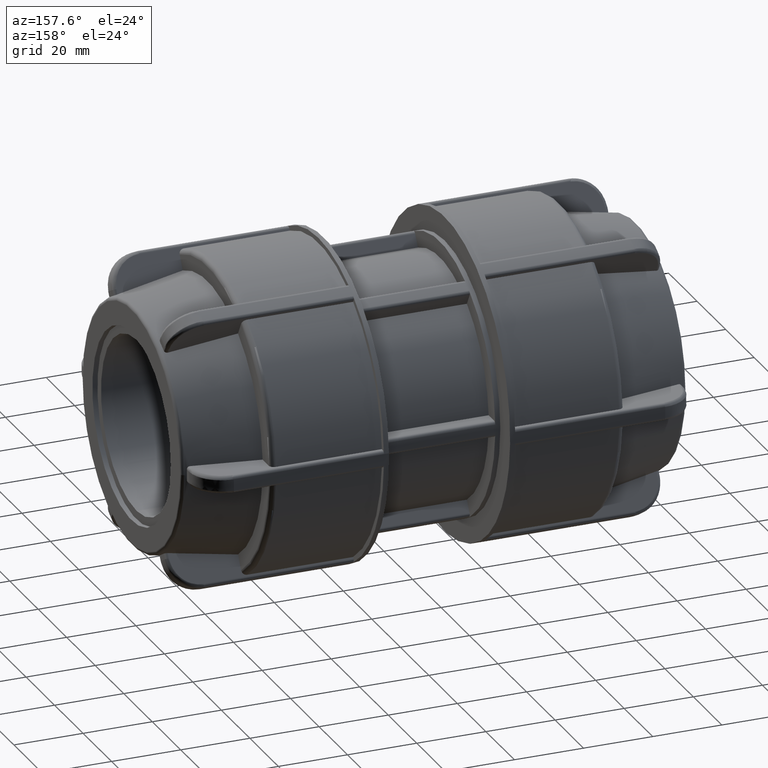
[diagram: clean part render]
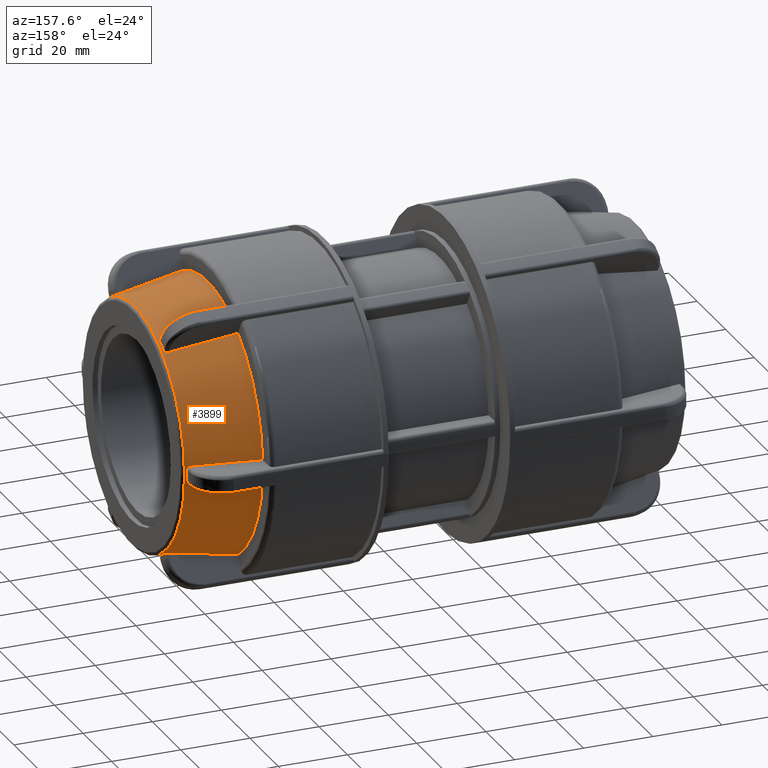
[diagram: same view with one face highlighted and labeled with its STEP entity id]
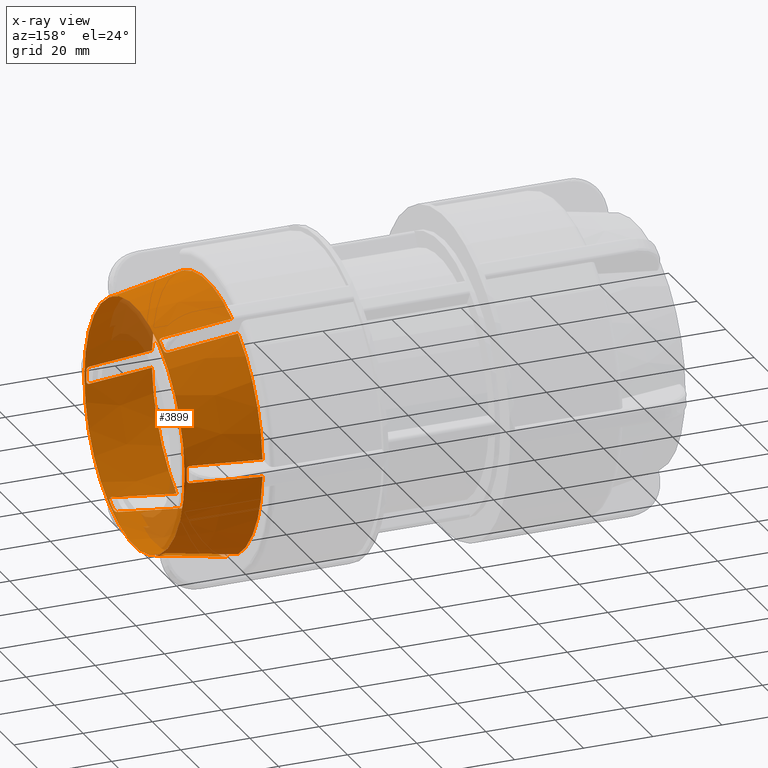
[diagram: x-ray of the same camera — body ghosted, the highlighted face saturated]
A machine part, auxiliary view. The second image highlights one B-rep face of the part: STEP entity #3899.
The next image is the same camera in x-ray: the body ghosted, the highlighted face saturated — about 8% of this face is hidden behind the body in this view.
In plain terms, the highlighted conical surface has half-angle 10 deg.
Its self-contained STEP definition (entity closure, byte-faithful):
#16=CONICAL_SURFACE('',#4328,36.9307804387577,10.);
#55=(
BOUNDED_CURVE()
B_SPLINE_CURVE(2,(#7132,#7133,#7134),.UNSPECIFIED.,.F.,.F.)
B_SPLINE_CURVE_WITH_KNOTS((3,3),(0.0978862877514315,2.07567538684826),
 .UNSPECIFIED.)
CURVE()
GEOMETRIC_REPRESENTATION_ITEM()
RATIONAL_B_SPLINE_CURVE((1.00010692556485,1.00113367647446,1.))
REPRESENTATION_ITEM('')
);
#56=(
BOUNDED_CURVE()
B_SPLINE_CURVE(2,(#7295,#7296,#7297),.UNSPECIFIED.,.F.,.F.)
B_SPLINE_CURVE_WITH_KNOTS((3,3),(0.097886291387217,2.07567538684826),
 .UNSPECIFIED.)
CURVE()
GEOMETRIC_REPRESENTATION_ITEM()
RATIONAL_B_SPLINE_CURVE((1.00010692591593,1.00113368015463,1.))
REPRESENTATION_ITEM('')
);
#57=(
BOUNDED_CURVE()
B_SPLINE_CURVE(2,(#7458,#7459,#7460),.UNSPECIFIED.,.F.,.F.)
B_SPLINE_CURVE_WITH_KNOTS((3,3),(0.0978862910511873,2.07567538684826),
 .UNSPECIFIED.)
CURVE()
GEOMETRIC_REPRESENTATION_ITEM()
RATIONAL_B_SPLINE_CURVE((1.00010692588588,1.00113367983993,1.))
REPRESENTATION_ITEM('')
);
#58=(
BOUNDED_CURVE()
B_SPLINE_CURVE(2,(#7621,#7622,#7623),.UNSPECIFIED.,.F.,.F.)
B_SPLINE_CURVE_WITH_KNOTS((3,3),(0.0978862911756987,2.07567538684826),
 .UNSPECIFIED.)
CURVE()
GEOMETRIC_REPRESENTATION_ITEM()
RATIONAL_B_SPLINE_CURVE((1.00010692590532,1.00113368004455,1.))
REPRESENTATION_ITEM('')
);
#59=(
BOUNDED_CURVE()
B_SPLINE_CURVE(2,(#7784,#7785,#7786),.UNSPECIFIED.,.F.,.F.)
B_SPLINE_CURVE_WITH_KNOTS((3,3),(0.097886288009189,2.07567538684826),
 .UNSPECIFIED.)
CURVE()
GEOMETRIC_REPRESENTATION_ITEM()
RATIONAL_B_SPLINE_CURVE((1.00010692558834,1.00113367672052,1.))
REPRESENTATION_ITEM('')
);
#60=(
BOUNDED_CURVE()
B_SPLINE_CURVE(2,(#7789,#7790,#7791),.UNSPECIFIED.,.F.,.F.)
B_SPLINE_CURVE_WITH_KNOTS((3,3),(0.,1.97778909908837),.UNSPECIFIED.)
CURVE()
GEOMETRIC_REPRESENTATION_ITEM()
RATIONAL_B_SPLINE_CURVE((1.,1.00113367637421,1.00010692555541))
REPRESENTATION_ITEM('')
);
#61=(
BOUNDED_CURVE()
B_SPLINE_CURVE(2,(#7810,#7811,#7812),.UNSPECIFIED.,.F.,.F.)
B_SPLINE_CURVE_WITH_KNOTS((3,3),(0.,1.97778909546345),.UNSPECIFIED.)
CURVE()
GEOMETRIC_REPRESENTATION_ITEM()
RATIONAL_B_SPLINE_CURVE((1.,1.00113368017763,1.0001069259181))
REPRESENTATION_ITEM('')
);
#62=(
BOUNDED_CURVE()
B_SPLINE_CURVE(2,(#7831,#7832,#7833),.UNSPECIFIED.,.F.,.F.)
B_SPLINE_CURVE_WITH_KNOTS((3,3),(0.,1.97778909580191),.UNSPECIFIED.)
CURVE()
GEOMETRIC_REPRESENTATION_ITEM()
RATIONAL_B_SPLINE_CURVE((1.,1.00113367989732,1.00010692589129))
REPRESENTATION_ITEM('')
);
#63=(
BOUNDED_CURVE()
B_SPLINE_CURVE(2,(#7852,#7853,#7854),.UNSPECIFIED.,.F.,.F.)
B_SPLINE_CURVE_WITH_KNOTS((3,3),(0.,1.97778909575819),.UNSPECIFIED.)
CURVE()
GEOMETRIC_REPRESENTATION_ITEM()
RATIONAL_B_SPLINE_CURVE((1.,1.00113367988918,1.00010692589057))
REPRESENTATION_ITEM('')
);
#64=(
BOUNDED_CURVE()
B_SPLINE_CURVE(2,(#7873,#7874,#7875),.UNSPECIFIED.,.F.,.F.)
B_SPLINE_CURVE_WITH_KNOTS((3,3),(0.,1.9777890990896),.UNSPECIFIED.)
CURVE()
GEOMETRIC_REPRESENTATION_ITEM()
RATIONAL_B_SPLINE_CURVE((1.,1.00113367640169,1.000106925558))
REPRESENTATION_ITEM('')
);
#65=(
BOUNDED_CURVE()
B_SPLINE_CURVE(2,(#7970,#7971,#7972),.UNSPECIFIED.,.F.,.F.)
B_SPLINE_CURVE_WITH_KNOTS((3,3),(0.,1.9777890990044),.UNSPECIFIED.)
CURVE()
GEOMETRIC_REPRESENTATION_ITEM()
RATIONAL_B_SPLINE_CURVE((1.,1.00113367653114,1.0001069255703))
REPRESENTATION_ITEM('')
);
#66=(
BOUNDED_CURVE()
B_SPLINE_CURVE(2,(#8004,#8005,#8006),.UNSPECIFIED.,.F.,.F.)
B_SPLINE_CURVE_WITH_KNOTS((3,3),(0.0978862878441736,2.07567538684825),
 .UNSPECIFIED.)
CURVE()
GEOMETRIC_REPRESENTATION_ITEM()
RATIONAL_B_SPLINE_CURVE((1.00010692557014,1.0011336765294,1.))
REPRESENTATION_ITEM('')
);
#117=B_SPLINE_CURVE_WITH_KNOTS('',3,(#6978,#6979,#6980,#6981,#6982,#6983,
#6984,#6985,#6986,#6987,#6988,#6989,#6990),.UNSPECIFIED.,.F.,.F.,(4,3,2,
2,2,4),(-0.00116009146380088,0.,0.0349671497301635,0.069934299460327,0.104425352367848,
0.138193037752767),.UNSPECIFIED.);
#120=B_SPLINE_CURVE_WITH_KNOTS('',3,(#7100,#7101,#7102,#7103,#7104,#7105,
#7106,#7107,#7108,#7109,#7110,#7111,#7112),.UNSPECIFIED.,.F.,.F.,(4,2,2,
2,3,4),(-0.138193037752768,-0.104425352367847,-0.0699342994603256,-0.0349671497301628,
0.,0.00116009146425094),.UNSPECIFIED.);
#124=B_SPLINE_CURVE_WITH_KNOTS('',3,(#7189,#7190,#7191,#7192,#7193,#7194,
#7195,#7196,#7197,#7198,#7199,#7200,#7201),.UNSPECIFIED.,.F.,.F.,(4,3,2,
2,2,4),(-0.00116009146382486,0.,0.0349671497301629,0.0699342994603257,0.104425352367848,
0.138193037752767),.UNSPECIFIED.);
#127=B_SPLINE_CURVE_WITH_KNOTS('',3,(#7263,#7264,#7265,#7266,#7267,#7268,
#7269,#7270,#7271,#7272,#7273,#7274,#7275),.UNSPECIFIED.,.F.,.F.,(4,2,2,
2,3,4),(-0.138193037752768,-0.104425352367848,-0.0699342994603265,-0.0349671497301632,
0.,0.00116009146427436),.UNSPECIFIED.);
#131=B_SPLINE_CURVE_WITH_KNOTS('',3,(#7352,#7353,#7354,#7355,#7356,#7357,
#7358,#7359,#7360,#7361,#7362,#7363,#7364),.UNSPECIFIED.,.F.,.F.,(4,3,2,
2,2,4),(-0.00116009146382164,0.,0.0349671497301633,0.0699342994603266,0.104425352367848,
0.138193037752768),.UNSPECIFIED.);
#134=B_SPLINE_CURVE_WITH_KNOTS('',3,(#7426,#7427,#7428,#7429,#7430,#7431,
#7432,#7433,#7434,#7435,#7436,#7437,#7438),.UNSPECIFIED.,.F.,.F.,(4,2,2,
2,3,4),(-0.138193037752768,-0.104425352367848,-0.0699342994603265,-0.0349671497301632,
0.,0.00116009146427194),.UNSPECIFIED.);
#138=B_SPLINE_CURVE_WITH_KNOTS('',3,(#7515,#7516,#7517,#7518,#7519,#7520,
#7521,#7522,#7523,#7524,#7525,#7526,#7527),.UNSPECIFIED.,.F.,.F.,(4,3,2,
2,2,4),(-0.00116009146382107,0.,0.0349671497301632,0.0699342994603265,0.104425352367848,
0.138193037752767),.UNSPECIFIED.);
#141=B_SPLINE_CURVE_WITH_KNOTS('',3,(#7589,#7590,#7591,#7592,#7593,#7594,
#7595,#7596,#7597,#7598,#7599,#7600,#7601),.UNSPECIFIED.,.F.,.F.,(4,2,2,
2,3,4),(-0.138193037752767,-0.104425352367848,-0.0699342994603269,-0.0349671497301635,
0.,0.00116009146427305),.UNSPECIFIED.);
#145=B_SPLINE_CURVE_WITH_KNOTS('',3,(#7678,#7679,#7680,#7681,#7682,#7683,
#7684,#7685,#7686,#7687,#7688,#7689,#7690),.UNSPECIFIED.,.F.,.F.,(4,3,2,
2,2,4),(-0.00116009146380058,0.,0.0349671497301633,0.0699342994603266,0.104425352367848,
0.138193037752768),.UNSPECIFIED.);
#148=B_SPLINE_CURVE_WITH_KNOTS('',3,(#7752,#7753,#7754,#7755,#7756,#7757,
#7758,#7759,#7760,#7761,#7762,#7763,#7764),.UNSPECIFIED.,.F.,.F.,(4,2,2,
2,3,4),(-0.138193037752767,-0.104425352367848,-0.0699342994603259,-0.034967149730163,
0.,0.00116009146425361),.UNSPECIFIED.);
#157=B_SPLINE_CURVE_WITH_KNOTS('',3,(#7974,#7975,#7976,#7977,#7978,#7979,
#7980,#7981,#7982,#7983,#7984,#7985,#7986),.UNSPECIFIED.,.F.,.F.,(4,3,2,
2,2,4),(-0.00116009146379942,0.,0.0349671497301636,0.0699342994603273,0.104425352367849,
0.138193037752769),.UNSPECIFIED.);
#158=B_SPLINE_CURVE_WITH_KNOTS('',3,(#7990,#7991,#7992,#7993,#7994,#7995,
#7996,#7997,#7998,#7999,#8000,#8001,#8002),.UNSPECIFIED.,.F.,.F.,(4,2,2,
2,3,4),(-0.138193037752768,-0.104425352367848,-0.0699342994603265,-0.0349671497301632,
0.,0.00116009146425099),.UNSPECIFIED.);
#209=FACE_BOUND('',#766,.T.);
#513=FACE_OUTER_BOUND('',#765,.T.);
#765=EDGE_LOOP('',(#3480,#3481,#3482,#3483,#3484,#3485,#3486,#3487,#3488,
#3489,#3490,#3491,#3492,#3493,#3494,#3495,#3496,#3497,#3498,#3499,#3500,
#3501,#3502,#3503,#3504,#3505,#3506,#3507,#3508,#3509,#3510,#3511,#3512,
#3513,#3514,#3515));
#766=EDGE_LOOP('',(#3516));
#1396=CIRCLE('',#4200,35.2574373918344);
#1417=CIRCLE('',#4229,35.2574373918344);
#1425=CIRCLE('',#4244,35.2574373918344);
#1433=CIRCLE('',#4259,35.2574373918344);
#1441=CIRCLE('',#4274,35.2574373918344);
#1466=CIRCLE('',#4329,38.8615608775154);
#1467=CIRCLE('',#4330,35.2574373918344);
#1468=CIRCLE('',#4331,38.8615608775154);
#1469=CIRCLE('',#4332,38.8615608775154);
#1470=CIRCLE('',#4333,38.8615608775154);
#1471=CIRCLE('',#4334,38.8615608775154);
#1472=CIRCLE('',#4335,38.8615608775154);
#1473=CIRCLE('',#4336,35.1457081218349);
#1716=VERTEX_POINT('',#6976);
#1717=VERTEX_POINT('',#6977);
#1719=VERTEX_POINT('',#6996);
#1746=VERTEX_POINT('',#7099);
#1750=VERTEX_POINT('',#7130);
#1755=VERTEX_POINT('',#7187);
#1756=VERTEX_POINT('',#7188);
#1758=VERTEX_POINT('',#7207);
#1762=VERTEX_POINT('',#7262);
#1766=VERTEX_POINT('',#7293);
#1771=VERTEX_POINT('',#7350);
#1772=VERTEX_POINT('',#7351);
#1774=VERTEX_POINT('',#7370);
#1778=VERTEX_POINT('',#7425);
#1782=VERTEX_POINT('',#7456);
#1787=VERTEX_POINT('',#7513);
#1788=VERTEX_POINT('',#7514);
#1790=VERTEX_POINT('',#7533);
#1794=VERTEX_POINT('',#7588);
#1798=VERTEX_POINT('',#7619);
#1803=VERTEX_POINT('',#7676);
#1804=VERTEX_POINT('',#7677);
#1806=VERTEX_POINT('',#7696);
#1810=VERTEX_POINT('',#7751);
#1814=VERTEX_POINT('',#7782);
#1815=VERTEX_POINT('',#7788);
#1819=VERTEX_POINT('',#7809);
#1823=VERTEX_POINT('',#7830);
#1827=VERTEX_POINT('',#7851);
#1831=VERTEX_POINT('',#7872);
#1844=VERTEX_POINT('',#7967);
#1845=VERTEX_POINT('',#7969);
#1846=VERTEX_POINT('',#7973);
#1847=VERTEX_POINT('',#7987);
#1848=VERTEX_POINT('',#7989);
#1849=VERTEX_POINT('',#8003);
#1850=VERTEX_POINT('',#8012);
#2215=EDGE_CURVE('',#1716,#1717,#117,.F.);
#2220=EDGE_CURVE('',#1716,#1719,#1396,.T.);
#2251=EDGE_CURVE('',#1746,#1719,#120,.F.);
#2257=EDGE_CURVE('',#1746,#1750,#55,.T.);
#2264=EDGE_CURVE('',#1755,#1756,#124,.F.);
#2269=EDGE_CURVE('',#1755,#1758,#1417,.T.);
#2276=EDGE_CURVE('',#1762,#1758,#127,.F.);
#2282=EDGE_CURVE('',#1762,#1766,#56,.T.);
#2289=EDGE_CURVE('',#1771,#1772,#131,.F.);
#2294=EDGE_CURVE('',#1771,#1774,#1425,.T.);
#2301=EDGE_CURVE('',#1778,#1774,#134,.F.);
#2307=EDGE_CURVE('',#1778,#1782,#57,.T.);
#2314=EDGE_CURVE('',#1787,#1788,#138,.F.);
#2319=EDGE_CURVE('',#1787,#1790,#1433,.T.);
#2326=EDGE_CURVE('',#1794,#1790,#141,.F.);
#2332=EDGE_CURVE('',#1794,#1798,#58,.T.);
#2339=EDGE_CURVE('',#1803,#1804,#145,.F.);
#2344=EDGE_CURVE('',#1803,#1806,#1441,.T.);
#2351=EDGE_CURVE('',#1810,#1806,#148,.F.);
#2357=EDGE_CURVE('',#1810,#1814,#59,.T.);
#2358=EDGE_CURVE('',#1815,#1717,#60,.T.);
#2363=EDGE_CURVE('',#1819,#1756,#61,.T.);
#2368=EDGE_CURVE('',#1823,#1772,#62,.T.);
#2373=EDGE_CURVE('',#1827,#1788,#63,.T.);
#2378=EDGE_CURVE('',#1831,#1804,#64,.T.);
#2410=EDGE_CURVE('',#1750,#1844,#1466,.T.);
#2411=EDGE_CURVE('',#1844,#1845,#65,.T.);
#2412=EDGE_CURVE('',#1846,#1845,#157,.F.);
#2413=EDGE_CURVE('',#1846,#1847,#1467,.T.);
#2414=EDGE_CURVE('',#1848,#1847,#158,.F.);
#2415=EDGE_CURVE('',#1848,#1849,#66,.T.);
#2416=EDGE_CURVE('',#1849,#1831,#1468,.T.);
#2417=EDGE_CURVE('',#1814,#1827,#1469,.T.);
#2418=EDGE_CURVE('',#1798,#1823,#1470,.T.);
#2419=EDGE_CURVE('',#1782,#1819,#1471,.T.);
#2420=EDGE_CURVE('',#1766,#1815,#1472,.T.);
#2421=EDGE_CURVE('',#1850,#1850,#1473,.T.);
#3480=ORIENTED_EDGE('',*,*,#2358,.T.);
#3481=ORIENTED_EDGE('',*,*,#2215,.F.);
#3482=ORIENTED_EDGE('',*,*,#2220,.T.);
#3483=ORIENTED_EDGE('',*,*,#2251,.F.);
#3484=ORIENTED_EDGE('',*,*,#2257,.T.);
#3485=ORIENTED_EDGE('',*,*,#2410,.T.);
#3486=ORIENTED_EDGE('',*,*,#2411,.T.);
#3487=ORIENTED_EDGE('',*,*,#2412,.F.);
#3488=ORIENTED_EDGE('',*,*,#2413,.T.);
#3489=ORIENTED_EDGE('',*,*,#2414,.F.);
#3490=ORIENTED_EDGE('',*,*,#2415,.T.);
#3491=ORIENTED_EDGE('',*,*,#2416,.T.);
#3492=ORIENTED_EDGE('',*,*,#2378,.T.);
#3493=ORIENTED_EDGE('',*,*,#2339,.F.);
#3494=ORIENTED_EDGE('',*,*,#2344,.T.);
#3495=ORIENTED_EDGE('',*,*,#2351,.F.);
#3496=ORIENTED_EDGE('',*,*,#2357,.T.);
#3497=ORIENTED_EDGE('',*,*,#2417,.T.);
#3498=ORIENTED_EDGE('',*,*,#2373,.T.);
#3499=ORIENTED_EDGE('',*,*,#2314,.F.);
#3500=ORIENTED_EDGE('',*,*,#2319,.T.);
#3501=ORIENTED_EDGE('',*,*,#2326,.F.);
#3502=ORIENTED_EDGE('',*,*,#2332,.T.);
#3503=ORIENTED_EDGE('',*,*,#2418,.T.);
#3504=ORIENTED_EDGE('',*,*,#2368,.T.);
#3505=ORIENTED_EDGE('',*,*,#2289,.F.);
#3506=ORIENTED_EDGE('',*,*,#2294,.T.);
#3507=ORIENTED_EDGE('',*,*,#2301,.F.);
#3508=ORIENTED_EDGE('',*,*,#2307,.T.);
#3509=ORIENTED_EDGE('',*,*,#2419,.T.);
#3510=ORIENTED_EDGE('',*,*,#2363,.T.);
#3511=ORIENTED_EDGE('',*,*,#2264,.F.);
#3512=ORIENTED_EDGE('',*,*,#2269,.T.);
#3513=ORIENTED_EDGE('',*,*,#2276,.F.);
#3514=ORIENTED_EDGE('',*,*,#2282,.T.);
#3515=ORIENTED_EDGE('',*,*,#2420,.T.);
#3516=ORIENTED_EDGE('',*,*,#2421,.F.);
#3899=ADVANCED_FACE('',(#513,#209),#16,.T.);
#4200=AXIS2_PLACEMENT_3D('',#6998,#5068,#5069);
#4229=AXIS2_PLACEMENT_3D('',#7209,#5146,#5147);
#4244=AXIS2_PLACEMENT_3D('',#7372,#5185,#5186);
#4259=AXIS2_PLACEMENT_3D('',#7535,#5224,#5225);
#4274=AXIS2_PLACEMENT_3D('',#7698,#5263,#5264);
#4328=AXIS2_PLACEMENT_3D('',#7966,#5395,#5396);
#4329=AXIS2_PLACEMENT_3D('',#7968,#5397,#5398);
#4330=AXIS2_PLACEMENT_3D('',#7988,#5399,#5400);
#4331=AXIS2_PLACEMENT_3D('',#8007,#5401,#5402);
#4332=AXIS2_PLACEMENT_3D('',#8008,#5403,#5404);
#4333=AXIS2_PLACEMENT_3D('',#8009,#5405,#5406);
#4334=AXIS2_PLACEMENT_3D('',#8010,#5407,#5408);
#4335=AXIS2_PLACEMENT_3D('',#8011,#5409,#5410);
#4336=AXIS2_PLACEMENT_3D('',#8013,#5411,#5412);
#5068=DIRECTION('center_axis',(1.,2.92984834820238E-16,-2.28229996066268E-17));
#5069=DIRECTION('ref_axis',(-2.79807969853637E-16,1.,0.));
#5146=DIRECTION('center_axis',(1.,2.66631104887036E-16,-2.28229996066268E-17));
#5147=DIRECTION('ref_axis',(-2.79807969853637E-16,1.,0.));
#5185=DIRECTION('center_axis',(1.,2.53454239920435E-16,-2.1570415377137E-32));
#5186=DIRECTION('ref_axis',(-2.79807969853637E-16,1.,0.));
#5224=DIRECTION('center_axis',(1.,2.66631104887036E-16,2.28229996066268E-17));
#5225=DIRECTION('ref_axis',(-2.79807969853637E-16,1.,0.));
#5263=DIRECTION('center_axis',(1.,2.92984834820238E-16,2.28229996066269E-17));
#5264=DIRECTION('ref_axis',(-2.79807969853637E-16,1.,0.));
#5395=DIRECTION('center_axis',(-1.,-3.06161699786838E-16,0.));
#5396=DIRECTION('ref_axis',(-2.79807969853637E-16,1.,0.));
#5397=DIRECTION('center_axis',(1.,3.06161699786838E-16,0.));
#5398=DIRECTION('ref_axis',(0.,0.,-1.));
#5399=DIRECTION('center_axis',(1.,3.06161699786838E-16,0.));
#5400=DIRECTION('ref_axis',(-2.79807969853637E-16,1.,0.));
#5401=DIRECTION('center_axis',(1.,3.06161699786838E-16,0.));
#5402=DIRECTION('ref_axis',(0.,0.,-1.));
#5403=DIRECTION('center_axis',(1.,3.06161699786838E-16,0.));
#5404=DIRECTION('ref_axis',(0.,0.,-1.));
#5405=DIRECTION('center_axis',(1.,3.06161699786838E-16,0.));
#5406=DIRECTION('ref_axis',(0.,0.,-1.));
#5407=DIRECTION('center_axis',(1.,3.06161699786838E-16,0.));
#5408=DIRECTION('ref_axis',(0.,0.,-1.));
#5409=DIRECTION('center_axis',(1.,3.06161699786838E-16,0.));
#5410=DIRECTION('ref_axis',(0.,0.,-1.));
#5411=DIRECTION('center_axis',(1.,2.52713195199026E-16,-2.54474691993343E-32));
#5412=DIRECTION('ref_axis',(2.52713195199026E-16,-1.,3.06161699786839E-17));
#6976=CARTESIAN_POINT('',(71.54,16.242688432224,-31.2931616161233));
#6977=CARTESIAN_POINT('',(70.62,15.5005965971027,-31.8478208538112));
#6978=CARTESIAN_POINT('Ctrl Pts',(70.6200000000003,15.5005965971035,-31.8478208538126));
#6979=CARTESIAN_POINT('Ctrl Pts',(70.6238244710568,15.5002585753471,-31.8472353829563));
#6980=CARTESIAN_POINT('Ctrl Pts',(70.6276411304764,15.4999427418107,-31.8466406447131));
#6981=CARTESIAN_POINT('Ctrl Pts',(70.6314493540356,15.499648879794,-31.8460368671249));
#6982=CARTESIAN_POINT('Ctrl Pts',(70.7462357545523,15.4907913737614,-31.82783797334));
#6983=CARTESIAN_POINT('Ctrl Pts',(70.8688335911244,15.5019044530926,-31.7984138873874));
#6984=CARTESIAN_POINT('Ctrl Pts',(71.0944200419447,15.5687995860925,-31.7214114704913));
#6985=CARTESIAN_POINT('Ctrl Pts',(71.1973968149064,15.6245827303516,-31.6737994008835));
#6986=CARTESIAN_POINT('Ctrl Pts',(71.3585799839163,15.7586429339945,-31.5755509506214));
#6987=CARTESIAN_POINT('Ctrl Pts',(71.4278523184448,15.8453531800499,-31.5185536624937));
#6988=CARTESIAN_POINT('Ctrl Pts',(71.5180449775594,16.0375118115446,-31.4033489572621));
#6989=CARTESIAN_POINT('Ctrl Pts',(71.54,16.1425106026287,-31.3451588318056));
#6990=CARTESIAN_POINT('Ctrl Pts',(71.54,16.242688432224,-31.2931616161233));
#6996=CARTESIAN_POINT('',(71.54,18.9793287081829,-29.7131616161234));
#6998=CARTESIAN_POINT('Origin',(71.54,2.19028080027504E-14,0.));
#7099=CARTESIAN_POINT('',(70.62,19.8307236160249,-29.3478208538112));
#7100=CARTESIAN_POINT('Ctrl Pts',(71.54,18.9793287081829,-29.7131616161233));
#7101=CARTESIAN_POINT('Ctrl Pts',(71.54,19.0744485326875,-29.6524036786389));
#7102=CARTESIAN_POINT('Ctrl Pts',(71.5180449775594,19.1773420551242,-29.5905671209216));
#7103=CARTESIAN_POINT('Ctrl Pts',(71.4278523184448,19.3731915722377,-29.4817552171066));
#7104=CARTESIAN_POINT('Ctrl Pts',(71.3585799839163,19.4659077947308,-29.4351605853181));
#7105=CARTESIAN_POINT('Ctrl Pts',(71.1973968149064,19.6180235503616,-29.3681852684579));
#7106=CARTESIAN_POINT('Ctrl Pts',(71.0944200419447,19.6871483842982,-29.3436816832304));
#7107=CARTESIAN_POINT('Ctrl Pts',(70.8688335911244,19.787281999983,-29.324250007111));
#7108=CARTESIAN_POINT('Ctrl Pts',(70.7462357545523,19.8183205455668,-29.3293378410722));
#7109=CARTESIAN_POINT('Ctrl Pts',(70.6314493540356,19.8296524968889,-29.3461081132031));
#7110=CARTESIAN_POINT('Ctrl Pts',(70.6276411304749,19.8300284526103,-29.3466644939691));
#7111=CARTESIAN_POINT('Ctrl Pts',(70.6238244710553,19.8303855942694,-29.3472353829566));
#7112=CARTESIAN_POINT('Ctrl Pts',(70.6200000000003,19.8307236160257,-29.3478208538126));
#7130=CARTESIAN_POINT('',(51.1,21.5555954376782,-32.3353864854586));
#7132=CARTESIAN_POINT('Ctrl Pts',(70.6200000000002,19.8307236160249,-29.3478208538112));
#7133=CARTESIAN_POINT('Ctrl Pts',(61.3143027907585,20.6531976442815,-30.7723876586574));
#7134=CARTESIAN_POINT('Ctrl Pts',(51.1,21.5555954376782,-32.3353864854586));
#7187=CARTESIAN_POINT('',(71.54,-18.9793287081829,-29.7131616161233));
#7188=CARTESIAN_POINT('',(70.62,-19.8307236160256,-29.3478208538123));
#7189=CARTESIAN_POINT('Ctrl Pts',(70.6200000000001,-19.8307236160258,-29.3478208538126));
#7190=CARTESIAN_POINT('Ctrl Pts',(70.6238244710566,-19.8303855942693,-29.3472353829563));
#7191=CARTESIAN_POINT('Ctrl Pts',(70.6276411304764,-19.8300284526102,-29.3466644939688));
#7192=CARTESIAN_POINT('Ctrl Pts',(70.6314493540356,-19.8296524968889,-29.346108113203));
#7193=CARTESIAN_POINT('Ctrl Pts',(70.7462357545523,-19.8183205455668,-29.3293378410722));
#7194=CARTESIAN_POINT('Ctrl Pts',(70.8688335911244,-19.787281999983,-29.324250007111));
#7195=CARTESIAN_POINT('Ctrl Pts',(71.0944200419447,-19.6871483842982,-29.3436816832304));
#7196=CARTESIAN_POINT('Ctrl Pts',(71.1973968149064,-19.6180235503616,-29.3681852684578));
#7197=CARTESIAN_POINT('Ctrl Pts',(71.3585799839163,-19.4659077947308,-29.4351605853181));
#7198=CARTESIAN_POINT('Ctrl Pts',(71.4278523184448,-19.3731915722376,-29.4817552171066));
#7199=CARTESIAN_POINT('Ctrl Pts',(71.5180449775594,-19.1773420551242,-29.5905671209216));
#7200=CARTESIAN_POINT('Ctrl Pts',(71.54,-19.0744485326875,-29.6524036786389));
#7201=CARTESIAN_POINT('Ctrl Pts',(71.54,-18.9793287081829,-29.7131616161233));
#7207=CARTESIAN_POINT('',(71.54,-16.2426884322241,-31.2931616161233));
#7209=CARTESIAN_POINT('Origin',(71.54,2.19028080027504E-14,0.));
#7262=CARTESIAN_POINT('',(70.62,-15.5005965971034,-31.8478208538123));
#7263=CARTESIAN_POINT('Ctrl Pts',(71.54,-16.2426884322241,-31.2931616161233));
#7264=CARTESIAN_POINT('Ctrl Pts',(71.54,-16.1425106026287,-31.3451588318056));
#7265=CARTESIAN_POINT('Ctrl Pts',(71.5180449775594,-16.0375118115446,-31.403348957262));
#7266=CARTESIAN_POINT('Ctrl Pts',(71.4278523184448,-15.8453531800499,-31.5185536624937));
#7267=CARTESIAN_POINT('Ctrl Pts',(71.3585799839163,-15.7586429339945,-31.5755509506214));
#7268=CARTESIAN_POINT('Ctrl Pts',(71.1973968149064,-15.6245827303516,-31.6737994008835));
#7269=CARTESIAN_POINT('Ctrl Pts',(71.0944200419447,-15.5687995860926,-31.7214114704912));
#7270=CARTESIAN_POINT('Ctrl Pts',(70.8688335911244,-15.5019044530926,-31.7984138873874));
#7271=CARTESIAN_POINT('Ctrl Pts',(70.7462357545523,-15.4907913737614,-31.82783797334));
#7272=CARTESIAN_POINT('Ctrl Pts',(70.6314493540356,-15.499648879794,-31.8460368671249));
#7273=CARTESIAN_POINT('Ctrl Pts',(70.6276411304749,-15.4999427418108,-31.8466406447133));
#7274=CARTESIAN_POINT('Ctrl Pts',(70.6238244710552,-15.5002585753472,-31.8472353829566));
#7275=CARTESIAN_POINT('Ctrl Pts',(70.6200000000001,-15.5005965971036,-31.8478208538126));
#7293=CARTESIAN_POINT('',(51.1,-17.2254684187561,-34.8353864854586));
#7295=CARTESIAN_POINT('Ctrl Pts',(70.6200000000003,-15.5005965971034,-31.8478208538123));
#7296=CARTESIAN_POINT('Ctrl Pts',(61.3143031689774,-16.3230705919372,-33.2723876007686));
#7297=CARTESIAN_POINT('Ctrl Pts',(51.1,-17.2254684187561,-34.8353864854586));
#7350=CARTESIAN_POINT('',(71.54,-35.2220171404069,1.58000000000001));
#7351=CARTESIAN_POINT('',(70.62,-35.3313202131288,2.50000000000001));
#7352=CARTESIAN_POINT('Ctrl Pts',(70.6200000000001,-35.3313202131293,2.50000000000001));
#7353=CARTESIAN_POINT('Ctrl Pts',(70.6238244710566,-35.3306441696163,2.50000000000001));
#7354=CARTESIAN_POINT('Ctrl Pts',(70.6276411304764,-35.3299711944209,2.49997615074424));
#7355=CARTESIAN_POINT('Ctrl Pts',(70.6314493540356,-35.3293013766829,2.49992875392184));
#7356=CARTESIAN_POINT('Ctrl Pts',(70.7462357545523,-35.3091119193282,2.49850013226784));
#7357=CARTESIAN_POINT('Ctrl Pts',(70.8688335911244,-35.2891864530756,2.47416388027637));
#7358=CARTESIAN_POINT('Ctrl Pts',(71.0944200419447,-35.2559479703908,2.37772978726083));
#7359=CARTESIAN_POINT('Ctrl Pts',(71.1973968149064,-35.2426062807132,2.30561413242566));
#7360=CARTESIAN_POINT('Ctrl Pts',(71.3585799839163,-35.2245507287252,2.14039036530334));
#7361=CARTESIAN_POINT('Ctrl Pts',(71.4278523184448,-35.2185447522876,2.03679844538708));
#7362=CARTESIAN_POINT('Ctrl Pts',(71.5180449775594,-35.2148538666687,1.81278183634044));
#7363=CARTESIAN_POINT('Ctrl Pts',(71.54,-35.2169591353161,1.69275515316671));
#7364=CARTESIAN_POINT('Ctrl Pts',(71.54,-35.2220171404069,1.58000000000001));
#7370=CARTESIAN_POINT('',(71.54,-35.2220171404069,-1.57999999999999));
#7372=CARTESIAN_POINT('Origin',(71.54,2.19028080027504E-14,0.));
#7425=CARTESIAN_POINT('',(70.62,-35.3313202131288,-2.49999999999999));
#7426=CARTESIAN_POINT('Ctrl Pts',(71.54,-35.2220171404069,-1.57999999999999));
#7427=CARTESIAN_POINT('Ctrl Pts',(71.54,-35.2169591353161,-1.69275515316669));
#7428=CARTESIAN_POINT('Ctrl Pts',(71.5180449775594,-35.2148538666687,-1.81278183634041));
#7429=CARTESIAN_POINT('Ctrl Pts',(71.4278523184448,-35.2185447522876,-2.03679844538706));
#7430=CARTESIAN_POINT('Ctrl Pts',(71.3585799839163,-35.2245507287252,-2.14039036530332));
#7431=CARTESIAN_POINT('Ctrl Pts',(71.1973968149064,-35.2426062807132,-2.30561413242564));
#7432=CARTESIAN_POINT('Ctrl Pts',(71.0944200419448,-35.2559479703908,-2.37772978726081));
#7433=CARTESIAN_POINT('Ctrl Pts',(70.8688335911244,-35.2891864530756,-2.47416388027635));
#7434=CARTESIAN_POINT('Ctrl Pts',(70.7462357545523,-35.3091119193282,-2.49850013226782));
#7435=CARTESIAN_POINT('Ctrl Pts',(70.6314493540356,-35.3293013766829,-2.49992875392182));
#7436=CARTESIAN_POINT('Ctrl Pts',(70.6276411304749,-35.3299711944212,-2.49997615074424));
#7437=CARTESIAN_POINT('Ctrl Pts',(70.6238244710552,-35.3306441696166,-2.49999999999999));
#7438=CARTESIAN_POINT('Ctrl Pts',(70.6200000000001,-35.3313202131293,-2.49999999999999));
#7456=CARTESIAN_POINT('',(51.1,-38.7810638564343,-2.49999999999999));
#7458=CARTESIAN_POINT('Ctrl Pts',(70.6200000000003,-35.3313202131288,-2.49999999999999));
#7459=CARTESIAN_POINT('Ctrl Pts',(61.3143031342579,-36.9762682089327,-2.49999999999999));
#7460=CARTESIAN_POINT('Ctrl Pts',(51.1,-38.7810638564343,-2.49999999999999));
#7513=CARTESIAN_POINT('',(71.54,-16.242688432224,31.2931616161233));
#7514=CARTESIAN_POINT('',(70.62,-15.5005965971033,31.8478208538122));
#7515=CARTESIAN_POINT('Ctrl Pts',(70.6200000000001,-15.5005965971035,31.8478208538126));
#7516=CARTESIAN_POINT('Ctrl Pts',(70.6238244710566,-15.5002585753471,31.8472353829563));
#7517=CARTESIAN_POINT('Ctrl Pts',(70.6276411304764,-15.4999427418107,31.8466406447131));
#7518=CARTESIAN_POINT('Ctrl Pts',(70.6314493540356,-15.499648879794,31.8460368671249));
#7519=CARTESIAN_POINT('Ctrl Pts',(70.7462357545523,-15.4907913737613,31.82783797334));
#7520=CARTESIAN_POINT('Ctrl Pts',(70.8688335911244,-15.5019044530926,31.7984138873874));
#7521=CARTESIAN_POINT('Ctrl Pts',(71.0944200419447,-15.5687995860925,31.7214114704913));
#7522=CARTESIAN_POINT('Ctrl Pts',(71.1973968149064,-15.6245827303515,31.6737994008835));
#7523=CARTESIAN_POINT('Ctrl Pts',(71.3585799839163,-15.7586429339945,31.5755509506214));
#7524=CARTESIAN_POINT('Ctrl Pts',(71.4278523184448,-15.8453531800499,31.5185536624937));
#7525=CARTESIAN_POINT('Ctrl Pts',(71.5180449775594,-16.0375118115445,31.403348957262));
#7526=CARTESIAN_POINT('Ctrl Pts',(71.54,-16.1425106026287,31.3451588318056));
#7527=CARTESIAN_POINT('Ctrl Pts',(71.54,-16.242688432224,31.2931616161233));
#7533=CARTESIAN_POINT('',(71.54,-18.9793287081828,29.7131616161233));
#7535=CARTESIAN_POINT('Origin',(71.54,2.19028080027504E-14,0.));
#7588=CARTESIAN_POINT('',(70.62,-19.8307236160255,29.3478208538123));
#7589=CARTESIAN_POINT('Ctrl Pts',(71.54,-18.9793287081828,29.7131616161233));
#7590=CARTESIAN_POINT('Ctrl Pts',(71.54,-19.0744485326874,29.6524036786389));
#7591=CARTESIAN_POINT('Ctrl Pts',(71.5180449775594,-19.1773420551242,29.5905671209216));
#7592=CARTESIAN_POINT('Ctrl Pts',(71.4278523184448,-19.3731915722376,29.4817552171066));
#7593=CARTESIAN_POINT('Ctrl Pts',(71.3585799839163,-19.4659077947307,29.4351605853181));
#7594=CARTESIAN_POINT('Ctrl Pts',(71.1973968149064,-19.6180235503616,29.3681852684579));
#7595=CARTESIAN_POINT('Ctrl Pts',(71.0944200419447,-19.6871483842982,29.3436816832304));
#7596=CARTESIAN_POINT('Ctrl Pts',(70.8688335911244,-19.787281999983,29.324250007111));
#7597=CARTESIAN_POINT('Ctrl Pts',(70.7462357545523,-19.8183205455668,29.3293378410722));
#7598=CARTESIAN_POINT('Ctrl Pts',(70.6314493540356,-19.8296524968889,29.346108113203));
#7599=CARTESIAN_POINT('Ctrl Pts',(70.6276411304749,-19.8300284526103,29.3466644939691));
#7600=CARTESIAN_POINT('Ctrl Pts',(70.6238244710552,-19.8303855942694,29.3472353829566));
#7601=CARTESIAN_POINT('Ctrl Pts',(70.6200000000001,-19.8307236160257,29.3478208538126));
#7619=CARTESIAN_POINT('',(51.1,-21.5555954376782,32.3353864854586));
#7621=CARTESIAN_POINT('Ctrl Pts',(70.6200000000003,-19.8307236160255,29.3478208538122));
#7622=CARTESIAN_POINT('Ctrl Pts',(61.3143031479412,-20.6531976127183,30.7723876039883));
#7623=CARTESIAN_POINT('Ctrl Pts',(51.1,-21.5555954376782,32.3353864854586));
#7676=CARTESIAN_POINT('',(71.54,18.9793287081829,29.7131616161233));
#7677=CARTESIAN_POINT('',(70.62,19.830723616025,29.3478208538112));
#7678=CARTESIAN_POINT('Ctrl Pts',(70.6200000000003,19.8307236160258,29.3478208538126));
#7679=CARTESIAN_POINT('Ctrl Pts',(70.6238244710568,19.8303855942693,29.3472353829563));
#7680=CARTESIAN_POINT('Ctrl Pts',(70.6276411304764,19.8300284526102,29.3466644939688));
#7681=CARTESIAN_POINT('Ctrl Pts',(70.6314493540356,19.829652496889,29.346108113203));
#7682=CARTESIAN_POINT('Ctrl Pts',(70.7462357545523,19.8183205455668,29.3293378410722));
#7683=CARTESIAN_POINT('Ctrl Pts',(70.8688335911244,19.7872819999831,29.324250007111));
#7684=CARTESIAN_POINT('Ctrl Pts',(71.0944200419447,19.6871483842983,29.3436816832304));
#7685=CARTESIAN_POINT('Ctrl Pts',(71.1973968149064,19.6180235503617,29.3681852684578));
#7686=CARTESIAN_POINT('Ctrl Pts',(71.3585799839163,19.4659077947308,29.4351605853181));
#7687=CARTESIAN_POINT('Ctrl Pts',(71.4278523184448,19.3731915722377,29.4817552171066));
#7688=CARTESIAN_POINT('Ctrl Pts',(71.5180449775594,19.1773420551242,29.5905671209216));
#7689=CARTESIAN_POINT('Ctrl Pts',(71.54,19.0744485326875,29.6524036786389));
#7690=CARTESIAN_POINT('Ctrl Pts',(71.54,18.9793287081829,29.7131616161233));
#7696=CARTESIAN_POINT('',(71.54,16.2426884322241,31.2931616161233));
#7698=CARTESIAN_POINT('Origin',(71.54,2.19028080027504E-14,0.));
#7751=CARTESIAN_POINT('',(70.62,15.5005965971028,31.8478208538113));
#7752=CARTESIAN_POINT('Ctrl Pts',(71.54,16.2426884322241,31.2931616161233));
#7753=CARTESIAN_POINT('Ctrl Pts',(71.54,16.1425106026287,31.3451588318056));
#7754=CARTESIAN_POINT('Ctrl Pts',(71.5180449775594,16.0375118115446,31.403348957262));
#7755=CARTESIAN_POINT('Ctrl Pts',(71.4278523184448,15.84535318005,31.5185536624937));
#7756=CARTESIAN_POINT('Ctrl Pts',(71.3585799839163,15.7586429339945,31.5755509506214));
#7757=CARTESIAN_POINT('Ctrl Pts',(71.1973968149064,15.6245827303516,31.6737994008835));
#7758=CARTESIAN_POINT('Ctrl Pts',(71.0944200419447,15.5687995860926,31.7214114704912));
#7759=CARTESIAN_POINT('Ctrl Pts',(70.8688335911244,15.5019044530927,31.7984138873874));
#7760=CARTESIAN_POINT('Ctrl Pts',(70.7462357545523,15.4907913737614,31.82783797334));
#7761=CARTESIAN_POINT('Ctrl Pts',(70.6314493540356,15.499648879794,31.8460368671249));
#7762=CARTESIAN_POINT('Ctrl Pts',(70.6276411304749,15.4999427418109,31.8466406447133));
#7763=CARTESIAN_POINT('Ctrl Pts',(70.6238244710553,15.5002585753472,31.8472353829565));
#7764=CARTESIAN_POINT('Ctrl Pts',(70.6200000000003,15.5005965971036,31.8478208538126));
#7782=CARTESIAN_POINT('',(51.1,17.2254684187561,34.8353864854586));
#7784=CARTESIAN_POINT('Ctrl Pts',(70.6200000000003,15.5005965971028,31.8478208538112));
#7785=CARTESIAN_POINT('Ctrl Pts',(61.3143028174342,16.3230706230021,33.2723876545745));
#7786=CARTESIAN_POINT('Ctrl Pts',(51.1,17.2254684187561,34.8353864854586));
#7788=CARTESIAN_POINT('',(51.1,17.225468418756,-34.8353864854586));
#7789=CARTESIAN_POINT('Ctrl Pts',(51.1,17.225468418756,-34.8353864854586));
#7790=CARTESIAN_POINT('Ctrl Pts',(61.3143027906264,16.323070625371,-33.2723876586776));
#7791=CARTESIAN_POINT('Ctrl Pts',(70.6200000000003,15.5005965971027,-31.8478208538112));
#7809=CARTESIAN_POINT('',(51.1,-21.5555954376783,-32.3353864854586));
#7810=CARTESIAN_POINT('Ctrl Pts',(51.1,-21.5555954376783,-32.3353864854586));
#7811=CARTESIAN_POINT('Ctrl Pts',(61.3143031689634,-20.6531976108606,-30.7723876007707));
#7812=CARTESIAN_POINT('Ctrl Pts',(70.6200000000003,-19.8307236160256,-29.3478208538123));
#7830=CARTESIAN_POINT('',(51.1,-38.7810638564343,2.50000000000001));
#7831=CARTESIAN_POINT('Ctrl Pts',(51.1,-38.7810638564343,2.50000000000001));
#7832=CARTESIAN_POINT('Ctrl Pts',(61.3143031343336,-36.9762682089193,2.50000000000001));
#7833=CARTESIAN_POINT('Ctrl Pts',(70.6200000000003,-35.3313202131288,2.50000000000001));
#7851=CARTESIAN_POINT('',(51.1,-17.225468418756,34.8353864854586));
#7852=CARTESIAN_POINT('Ctrl Pts',(51.1,-17.225468418756,34.8353864854586));
#7853=CARTESIAN_POINT('Ctrl Pts',(61.3143031383943,-16.3230705946397,33.2723876054495));
#7854=CARTESIAN_POINT('Ctrl Pts',(70.6200000000003,-15.5005965971033,31.8478208538122));
#7872=CARTESIAN_POINT('',(51.1,21.5555954376783,32.3353864854586));
#7873=CARTESIAN_POINT('Ctrl Pts',(51.1,21.5555954376783,32.3353864854586));
#7874=CARTESIAN_POINT('Ctrl Pts',(61.3143027907661,20.6531976442808,30.7723876586562));
#7875=CARTESIAN_POINT('Ctrl Pts',(70.6200000000002,19.8307236160249,29.3478208538111));
#7966=CARTESIAN_POINT('Origin',(62.05,1.89973334717733E-14,0.));
#7967=CARTESIAN_POINT('',(51.1,38.7810638564343,-2.5));
#7968=CARTESIAN_POINT('Origin',(51.1,1.56448628591074E-14,0.));
#7969=CARTESIAN_POINT('',(70.62,35.3313202131277,-2.5));
#7970=CARTESIAN_POINT('Ctrl Pts',(51.1,38.7810638564343,-2.5));
#7971=CARTESIAN_POINT('Ctrl Pts',(61.3143028000307,36.9762682680021,-2.5));
#7972=CARTESIAN_POINT('Ctrl Pts',(70.6200000000003,35.3313202131277,-2.5));
#7973=CARTESIAN_POINT('',(71.54,35.222017140407,-1.58));
#7974=CARTESIAN_POINT('Ctrl Pts',(70.6200000000003,35.3313202131293,-2.5));
#7975=CARTESIAN_POINT('Ctrl Pts',(70.6238244710567,35.3306441696164,-2.5));
#7976=CARTESIAN_POINT('Ctrl Pts',(70.6276411304764,35.3299711944209,-2.49997615074424));
#7977=CARTESIAN_POINT('Ctrl Pts',(70.6314493540356,35.329301376683,-2.49992875392183));
#7978=CARTESIAN_POINT('Ctrl Pts',(70.7462357545523,35.3091119193282,-2.49850013226784));
#7979=CARTESIAN_POINT('Ctrl Pts',(70.8688335911244,35.2891864530757,-2.47416388027637));
#7980=CARTESIAN_POINT('Ctrl Pts',(71.0944200419447,35.2559479703908,-2.37772978726083));
#7981=CARTESIAN_POINT('Ctrl Pts',(71.1973968149064,35.2426062807132,-2.30561413242566));
#7982=CARTESIAN_POINT('Ctrl Pts',(71.3585799839163,35.2245507287253,-2.14039036530334));
#7983=CARTESIAN_POINT('Ctrl Pts',(71.4278523184448,35.2185447522876,-2.03679844538709));
#7984=CARTESIAN_POINT('Ctrl Pts',(71.5180449775594,35.2148538666688,-1.81278183634044));
#7985=CARTESIAN_POINT('Ctrl Pts',(71.54,35.2169591353162,-1.69275515316671));
#7986=CARTESIAN_POINT('Ctrl Pts',(71.54,35.222017140407,-1.58));
#7987=CARTESIAN_POINT('',(71.54,35.222017140407,1.58));
#7988=CARTESIAN_POINT('Origin',(71.54,2.19028080027504E-14,0.));
#7989=CARTESIAN_POINT('',(70.62,35.3313202131277,2.5));
#7990=CARTESIAN_POINT('Ctrl Pts',(71.54,35.222017140407,1.58));
#7991=CARTESIAN_POINT('Ctrl Pts',(71.54,35.2169591353162,1.6927551531667));
#7992=CARTESIAN_POINT('Ctrl Pts',(71.5180449775594,35.2148538666688,1.81278183634043));
#7993=CARTESIAN_POINT('Ctrl Pts',(71.4278523184448,35.2185447522876,2.03679844538707));
#7994=CARTESIAN_POINT('Ctrl Pts',(71.3585799839163,35.2245507287253,2.14039036530333));
#7995=CARTESIAN_POINT('Ctrl Pts',(71.1973968149064,35.2426062807132,2.30561413242565));
#7996=CARTESIAN_POINT('Ctrl Pts',(71.0944200419447,35.2559479703908,2.37772978726082));
#7997=CARTESIAN_POINT('Ctrl Pts',(70.8688335911244,35.2891864530757,2.47416388027635));
#7998=CARTESIAN_POINT('Ctrl Pts',(70.7462357545523,35.3091119193282,2.49850013226783));
#7999=CARTESIAN_POINT('Ctrl Pts',(70.6314493540356,35.329301376683,2.49992875392182));
#8000=CARTESIAN_POINT('Ctrl Pts',(70.6276411304749,35.3299711944212,2.49997615074425));
#8001=CARTESIAN_POINT('Ctrl Pts',(70.6238244710553,35.3306441696166,2.5));
#8002=CARTESIAN_POINT('Ctrl Pts',(70.6200000000003,35.3313202131293,2.5));
#8003=CARTESIAN_POINT('',(51.1,38.7810638564343,2.5));
#8004=CARTESIAN_POINT('Ctrl Pts',(70.6200000000003,35.3313202131277,2.5));
#8005=CARTESIAN_POINT('Ctrl Pts',(61.3143028000444,36.9762682679997,2.5));
#8006=CARTESIAN_POINT('Ctrl Pts',(51.1,38.7810638564343,2.5));
#8007=CARTESIAN_POINT('Origin',(51.1,1.56448628591074E-14,0.));
#8008=CARTESIAN_POINT('Origin',(51.1,1.56448628591074E-14,0.));
#8009=CARTESIAN_POINT('Origin',(51.1,1.56448628591074E-14,0.));
#8010=CARTESIAN_POINT('Origin',(51.1,1.56448628591074E-14,0.));
#8011=CARTESIAN_POINT('Origin',(51.1,1.56448628591074E-14,0.));
#8012=CARTESIAN_POINT('',(72.1736481776669,35.1457081218349,-2.15205394775862E-15));
#8013=CARTESIAN_POINT('Origin',(72.1736481776669,1.99840144432528E-14,-5.38013486939654E-15));